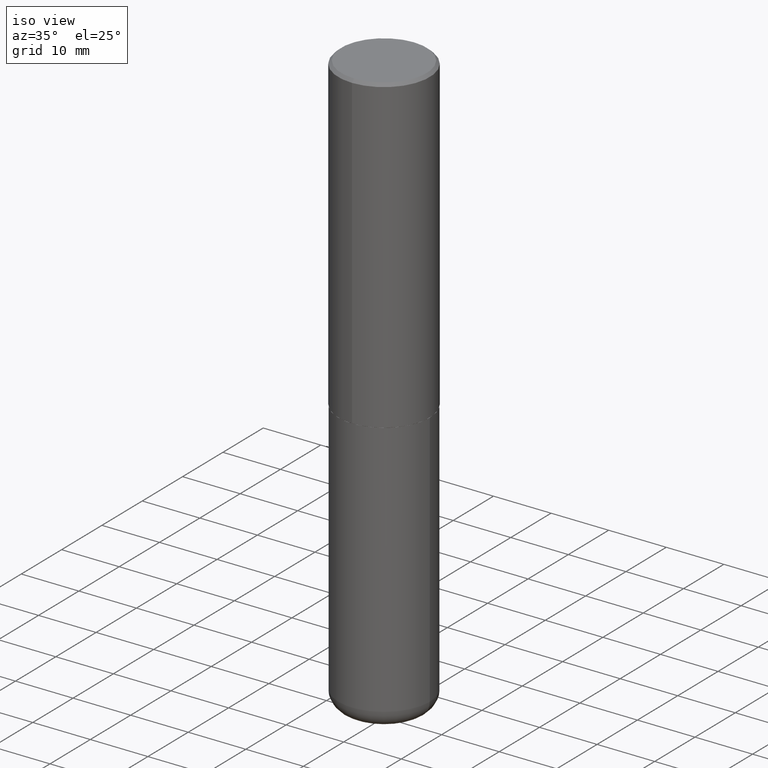
[diagram: clean part render]
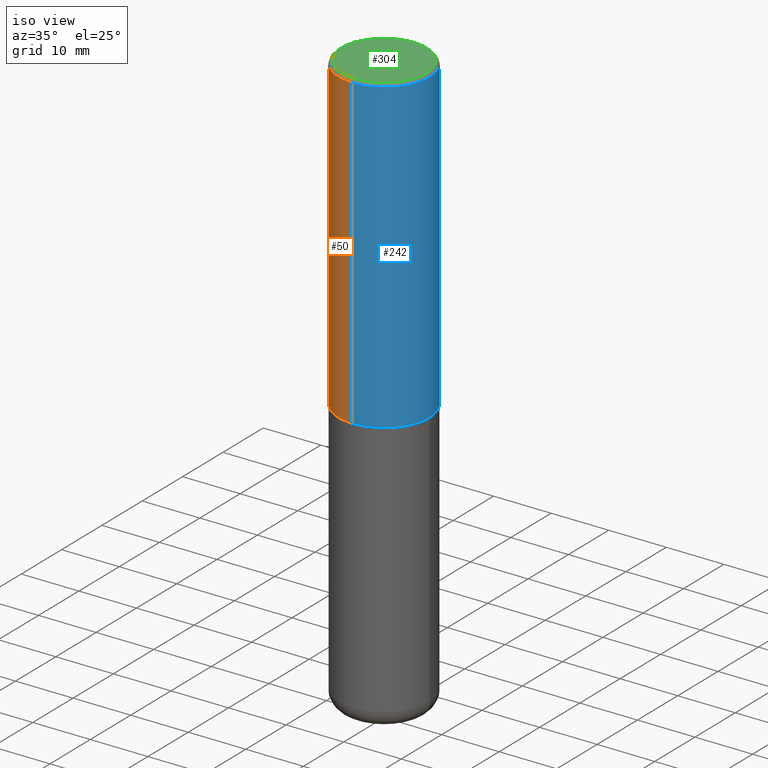
[diagram: same view with three faces highlighted in distinct colors, each labeled with its STEP entity id]
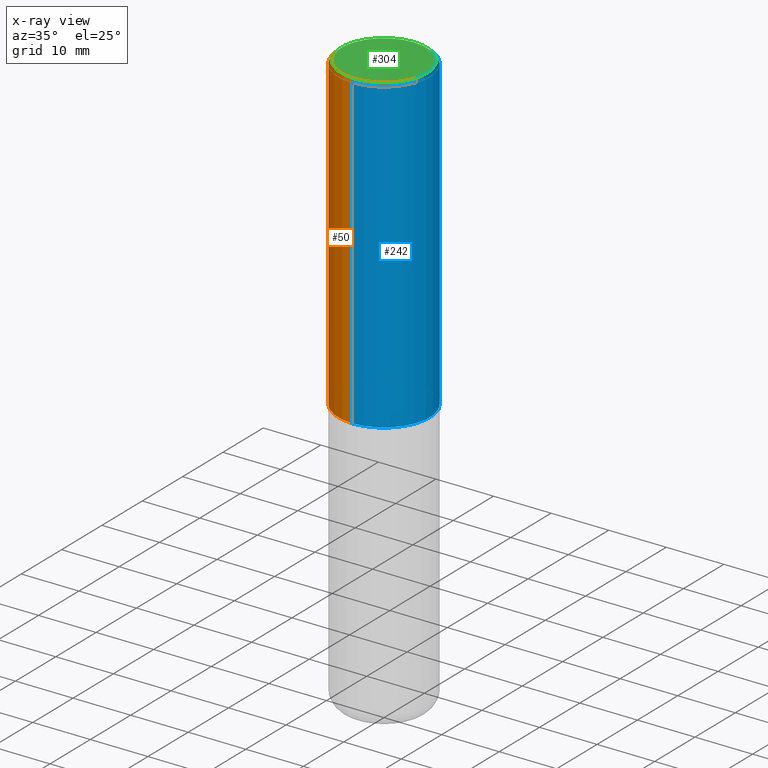
[diagram: x-ray of the same camera — body ghosted, the three highlighted faces saturated]
A machine part, iso view with three faces highlighted in distinct colors.
The next image is the same camera in x-ray (body ghosted, the three faces saturated) — at least one of them is partly hidden behind the body in this view.
Their STEP definitions:

[orange] entity #50 — the highlighted cylindrical surface (partial cylindrical patch) has radius 7.9375 mm, axis along (-0, 0, 1).
#21 = ORIENTED_EDGE ( 'NONE', *, *, #183, .F. ) ;
#27 = LINE ( 'NONE', #385, #78 ) ;
#31 = AXIS2_PLACEMENT_3D ( 'NONE', #402, #177, #409 ) ;
#37 = DIRECTION ( 'NONE',  ( -2.444852431726452894E-29, 3.492364022149836358E-15, 1.000000000000000000 ) ) ;
#44 = VECTOR ( 'NONE', #398, 39.37007874015748143 ) ;
#47 = VERTEX_POINT ( 'NONE', #360 ) ;
#50 = ADVANCED_FACE ( 'NONE', ( #201 ), #260, .T. ) ;
#74 = VERTEX_POINT ( 'NONE', #266 ) ;
#77 = DIRECTION ( 'NONE',  ( -2.444852431726452894E-29, 3.492364022149836358E-15, 1.000000000000000000 ) ) ;
#78 = VECTOR ( 'NONE', #228, 39.37007874015748143 ) ;
#94 = EDGE_CURVE ( 'NONE', #47, #405, #27, .T. ) ;
#108 = CARTESIAN_POINT ( 'NONE',  ( 4.889704863452922148E-31, -6.984728044299695791E-17, -0.02000000000000006981 ) ) ;
#118 = CIRCLE ( 'NONE', #31, 0.3125000000000002776 ) ;
#128 = DIRECTION ( 'NONE',  ( -6.982962677686265133E-15, -1.000000000000000000, 3.492364022149836358E-15 ) ) ;
#142 = CARTESIAN_POINT ( 'NONE',  ( 2.220446049250340297E-15, 0.3124999999999928391, -2.124000000000000554 ) ) ;
#143 = EDGE_LOOP ( 'NONE', ( #351, #403, #277, #21 ) ) ;
#171 = DIRECTION ( 'NONE',  ( -6.982962677686265133E-15, -1.000000000000000000, 3.496765431890256920E-15 ) ) ;
#177 = DIRECTION ( 'NONE',  ( -2.444852431726452894E-29, 3.492364022149836358E-15, 1.000000000000000000 ) ) ;
#183 = EDGE_CURVE ( 'NONE', #74, #405, #245, .T. ) ;
#201 = FACE_OUTER_BOUND ( 'NONE', #143, .T. ) ;
#219 = EDGE_CURVE ( 'NONE', #388, #74, #275, .T. ) ;
#228 = DIRECTION ( 'NONE',  ( -2.444852431726452614E-29, 3.492364022149836358E-15, 1.000000000000000000 ) ) ;
#241 = CARTESIAN_POINT ( 'NONE',  ( 2.220446049250313475E-15, 0.3125000000000001665, -1.091363756921824478E-15 ) ) ;
#245 = CIRCLE ( 'NONE', #309, 0.3125000000000000000 ) ;
#260 = CYLINDRICAL_SURFACE ( 'NONE', #342, 0.3125000000000001665 ) ;
#266 = CARTESIAN_POINT ( 'NONE',  ( 2.182175836776958741E-15, 0.3124999999999999445, -0.02000000000000116268 ) ) ;
#275 = LINE ( 'NONE', #241, #44 ) ;
#277 = ORIENTED_EDGE ( 'NONE', *, *, #94, .T. ) ;
#309 = AXIS2_PLACEMENT_3D ( 'NONE', #108, #77, #171 ) ;
#326 = CARTESIAN_POINT ( 'NONE',  ( 0.000000000000000000, 0.000000000000000000, 0.000000000000000000 ) ) ;
#342 = AXIS2_PLACEMENT_3D ( 'NONE', #326, #37, #128 ) ;
#351 = ORIENTED_EDGE ( 'NONE', *, *, #219, .F. ) ;
#360 = CARTESIAN_POINT ( 'NONE',  ( -2.182175836776908254E-15, -0.3125000000000077161, -2.123999999999998334 ) ) ;
#373 = CARTESIAN_POINT ( 'NONE',  ( -2.143905624303602824E-15, -0.3125000000000000555, -0.01999999999999897693 ) ) ;
#385 = CARTESIAN_POINT ( 'NONE',  ( -2.182175836776959136E-15, -0.3125000000000001665, 1.091363756921824478E-15 ) ) ;
#388 = VERTEX_POINT ( 'NONE', #142 ) ;
#398 = DIRECTION ( 'NONE',  ( -2.444852431726452614E-29, 3.492364022149836358E-15, 1.000000000000000000 ) ) ;
#402 = CARTESIAN_POINT ( 'NONE',  ( 5.192866564986985411E-29, -7.417781183046251262E-15, -2.123999999999999666 ) ) ;
#403 = ORIENTED_EDGE ( 'NONE', *, *, #418, .T. ) ;
#405 = VERTEX_POINT ( 'NONE', #373 ) ;
#409 = DIRECTION ( 'NONE',  ( -6.982962677686265922E-15, -1.000000000000000000, 3.496765431890253764E-15 ) ) ;
#418 = EDGE_CURVE ( 'NONE', #388, #47, #118, .T. ) ;

[blue] entity #242 — the highlighted cylindrical surface (partial cylindrical patch) has radius 7.9375 mm, axis along (-0, 0, 1).
#2 = AXIS2_PLACEMENT_3D ( 'NONE', #417, #331, #390 ) ;
#27 = LINE ( 'NONE', #385, #78 ) ;
#42 = CARTESIAN_POINT ( 'NONE',  ( 4.889704863452922148E-31, -6.984728044299695791E-17, -0.02000000000000006981 ) ) ;
#44 = VECTOR ( 'NONE', #398, 39.37007874015748143 ) ;
#47 = VERTEX_POINT ( 'NONE', #360 ) ;
#58 = AXIS2_PLACEMENT_3D ( 'NONE', #42, #169, #210 ) ;
#74 = VERTEX_POINT ( 'NONE', #266 ) ;
#78 = VECTOR ( 'NONE', #228, 39.37007874015748143 ) ;
#79 = AXIS2_PLACEMENT_3D ( 'NONE', #311, #362, #133 ) ;
#89 = ORIENTED_EDGE ( 'NONE', *, *, #219, .T. ) ;
#94 = EDGE_CURVE ( 'NONE', #47, #405, #27, .T. ) ;
#110 = EDGE_CURVE ( 'NONE', #47, #388, #189, .T. ) ;
#114 = ORIENTED_EDGE ( 'NONE', *, *, #110, .T. ) ;
#133 = DIRECTION ( 'NONE',  ( -6.982962677686265133E-15, -1.000000000000000000, 3.492364022149836358E-15 ) ) ;
#142 = CARTESIAN_POINT ( 'NONE',  ( 2.220446049250340297E-15, 0.3124999999999928391, -2.124000000000000554 ) ) ;
#168 = CYLINDRICAL_SURFACE ( 'NONE', #79, 0.3125000000000001665 ) ;
#169 = DIRECTION ( 'NONE',  ( -2.444852431726452894E-29, 3.492364022149836358E-15, 1.000000000000000000 ) ) ;
#174 = FACE_OUTER_BOUND ( 'NONE', #185, .T. ) ;
#175 = ORIENTED_EDGE ( 'NONE', *, *, #237, .F. ) ;
#185 = EDGE_LOOP ( 'NONE', ( #114, #89, #175, #292 ) ) ;
#189 = CIRCLE ( 'NONE', #2, 0.3125000000000002776 ) ;
#210 = DIRECTION ( 'NONE',  ( -6.982962677686265133E-15, -1.000000000000000000, 3.496765431890256920E-15 ) ) ;
#219 = EDGE_CURVE ( 'NONE', #388, #74, #275, .T. ) ;
#228 = DIRECTION ( 'NONE',  ( -2.444852431726452614E-29, 3.492364022149836358E-15, 1.000000000000000000 ) ) ;
#237 = EDGE_CURVE ( 'NONE', #405, #74, #401, .T. ) ;
#241 = CARTESIAN_POINT ( 'NONE',  ( 2.220446049250313475E-15, 0.3125000000000001665, -1.091363756921824478E-15 ) ) ;
#242 = ADVANCED_FACE ( 'NONE', ( #174 ), #168, .T. ) ;
#266 = CARTESIAN_POINT ( 'NONE',  ( 2.182175836776958741E-15, 0.3124999999999999445, -0.02000000000000116268 ) ) ;
#275 = LINE ( 'NONE', #241, #44 ) ;
#292 = ORIENTED_EDGE ( 'NONE', *, *, #94, .F. ) ;
#311 = CARTESIAN_POINT ( 'NONE',  ( 0.000000000000000000, 0.000000000000000000, 0.000000000000000000 ) ) ;
#331 = DIRECTION ( 'NONE',  ( -2.444852431726452894E-29, 3.492364022149836358E-15, 1.000000000000000000 ) ) ;
#360 = CARTESIAN_POINT ( 'NONE',  ( -2.182175836776908254E-15, -0.3125000000000077161, -2.123999999999998334 ) ) ;
#362 = DIRECTION ( 'NONE',  ( -2.444852431726452894E-29, 3.492364022149836358E-15, 1.000000000000000000 ) ) ;
#373 = CARTESIAN_POINT ( 'NONE',  ( -2.143905624303602824E-15, -0.3125000000000000555, -0.01999999999999897693 ) ) ;
#385 = CARTESIAN_POINT ( 'NONE',  ( -2.182175836776959136E-15, -0.3125000000000001665, 1.091363756921824478E-15 ) ) ;
#388 = VERTEX_POINT ( 'NONE', #142 ) ;
#390 = DIRECTION ( 'NONE',  ( -6.982962677686265922E-15, -1.000000000000000000, 3.496765431890253764E-15 ) ) ;
#398 = DIRECTION ( 'NONE',  ( -2.444852431726452614E-29, 3.492364022149836358E-15, 1.000000000000000000 ) ) ;
#401 = CIRCLE ( 'NONE', #58, 0.3125000000000000000 ) ;
#405 = VERTEX_POINT ( 'NONE', #373 ) ;
#417 = CARTESIAN_POINT ( 'NONE',  ( 5.192866564986985411E-29, -7.417781183046251262E-15, -2.123999999999999666 ) ) ;

[green] entity #304 — the highlighted planar face has unit normal (0, -0, -1).
#5 = EDGE_CURVE ( 'NONE', #255, #54, #130, .T. ) ;
#19 = EDGE_LOOP ( 'NONE', ( #321, #25 ) ) ;
#25 = ORIENTED_EDGE ( 'NONE', *, *, #69, .T. ) ;
#51 = AXIS2_PLACEMENT_3D ( 'NONE', #363, #276, #71 ) ;
#54 = VERTEX_POINT ( 'NONE', #65 ) ;
#62 = DIRECTION ( 'NONE',  ( -2.444852431726452894E-29, 3.492364022149836358E-15, 1.000000000000000000 ) ) ;
#65 = CARTESIAN_POINT ( 'NONE',  ( -2.075300644325887493E-15, -0.2924999999999999822, 1.030311686326234990E-15 ) ) ;
#69 = EDGE_CURVE ( 'NONE', #54, #255, #153, .T. ) ;
#71 = DIRECTION ( 'NONE',  ( 6.982962677686265922E-15, 1.000000000000000000, -3.492364022149836358E-15 ) ) ;
#92 = DIRECTION ( 'NONE',  ( -2.444852431726452894E-29, 3.492364022149836358E-15, 1.000000000000000000 ) ) ;
#93 = CARTESIAN_POINT ( 'NONE',  ( -2.150299018297948745E-46, 3.071607443834507134E-32, 8.795209847407834549E-18 ) ) ;
#130 = CIRCLE ( 'NONE', #244, 0.2924999999999999822 ) ;
#152 = AXIS2_PLACEMENT_3D ( 'NONE', #333, #62, #361 ) ;
#153 = CIRCLE ( 'NONE', #152, 0.2924999999999999822 ) ;
#238 = FACE_OUTER_BOUND ( 'NONE', #19, .T. ) ;
#244 = AXIS2_PLACEMENT_3D ( 'NONE', #93, #92, #414 ) ;
#255 = VERTEX_POINT ( 'NONE', #343 ) ;
#276 = DIRECTION ( 'NONE',  ( 2.444852431726452333E-29, -3.492364022149836358E-15, -1.000000000000000000 ) ) ;
#304 = ADVANCED_FACE ( 'NONE', ( #238 ), #312, .F. ) ;
#312 = PLANE ( 'NONE',  #51 ) ;
#321 = ORIENTED_EDGE ( 'NONE', *, *, #5, .T. ) ;
#333 = CARTESIAN_POINT ( 'NONE',  ( -2.150299018297948745E-46, 3.071607443834507134E-32, 8.795209847407834549E-18 ) ) ;
#343 = CARTESIAN_POINT ( 'NONE',  ( 2.112346210000095838E-15, 0.2924999999999999822, -1.012721266631419361E-15 ) ) ;
#361 = DIRECTION ( 'NONE',  ( -6.982962677686265133E-15, -1.000000000000000000, 3.492364022149836753E-15 ) ) ;
#363 = CARTESIAN_POINT ( 'NONE',  ( 2.042516583223232540E-15, 0.2924999999999999822, -1.017118871555123169E-15 ) ) ;
#414 = DIRECTION ( 'NONE',  ( -6.982962677686265133E-15, -1.000000000000000000, 3.492364022149836753E-15 ) ) ;